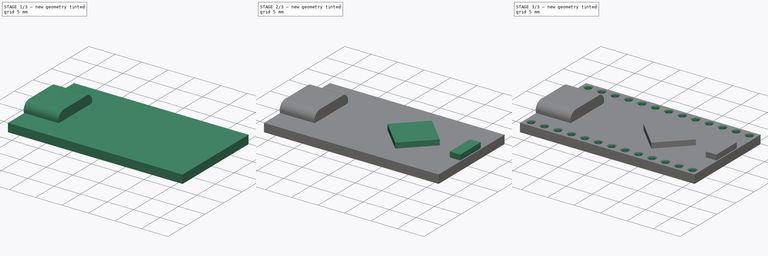
[diagram: build sequence overview — one tinted view per stage of 3, left to right]
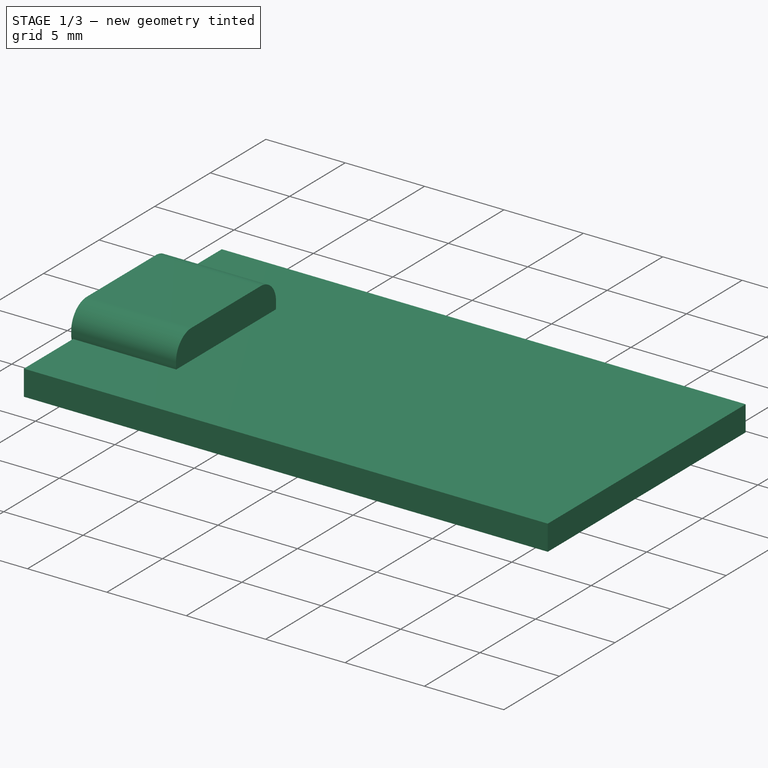
[diagram: stage 1 of 3 — iso view after this stage's code; geometry added in this stage tinted green]
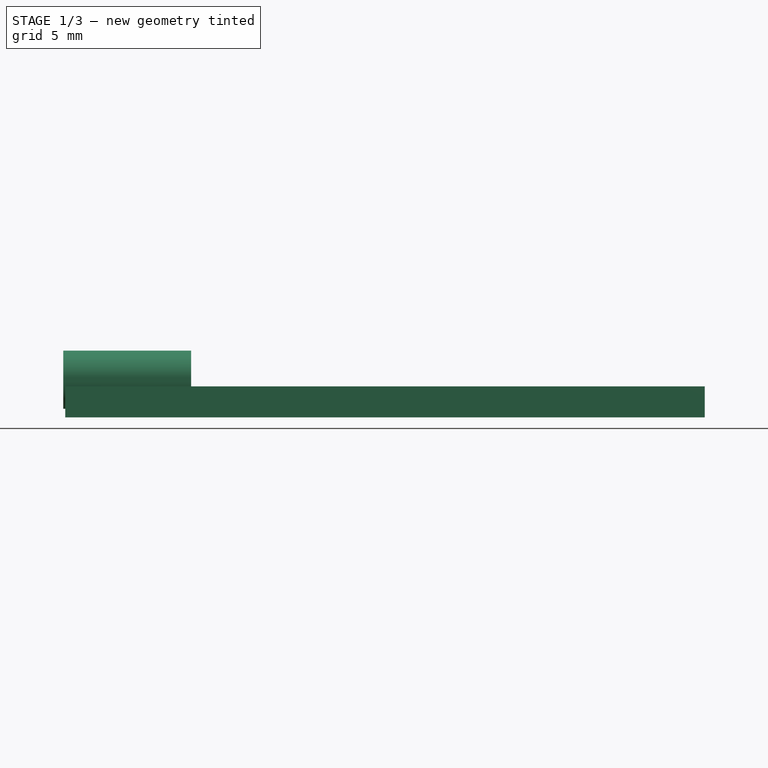
[diagram: stage 1 of 3 — front view after this stage's code; geometry added in this stage tinted green]
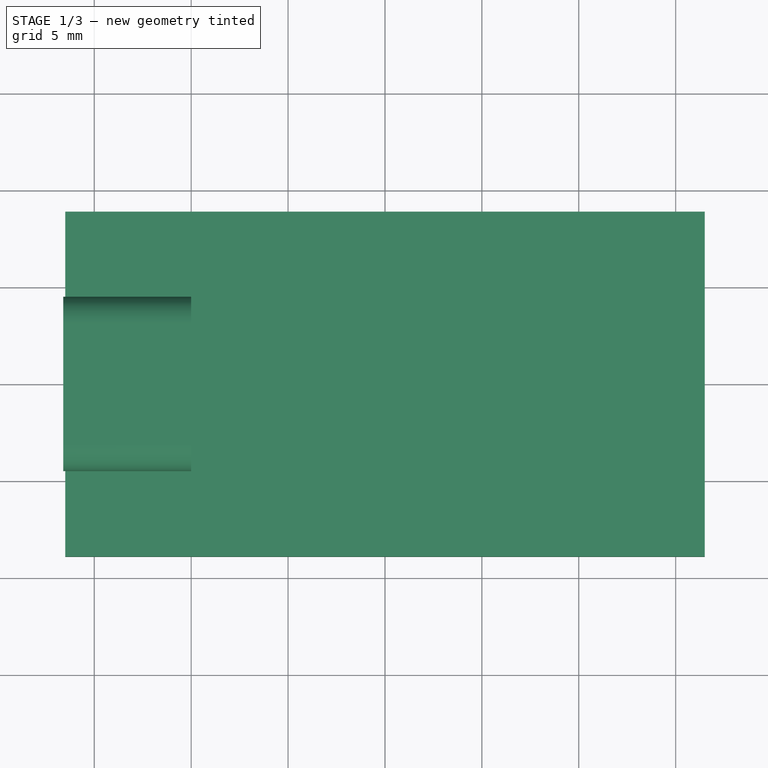
[diagram: stage 1 of 3 — top view after this stage's code; geometry added in this stage tinted green]
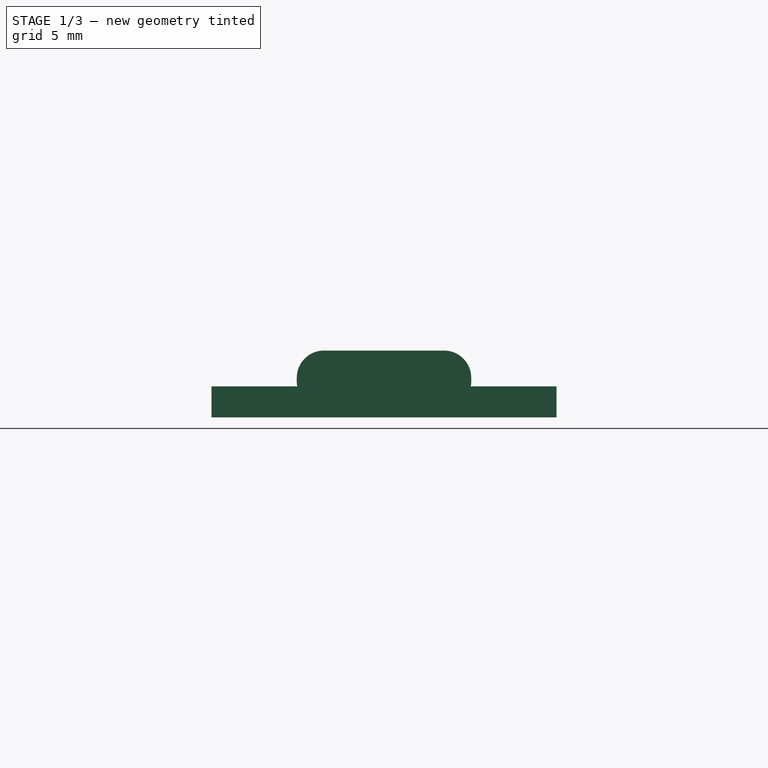
[diagram: stage 1 of 3 — right view after this stage's code; geometry added in this stage tinted green]
FCSTD DOCUMENT  (FreeCAD 1.0R39285 (Git))
Label: nrf52840
Comment: # 2025-11-18 17:26:09: read from None
License: All rights reserved
LicenseURL: https://en.wikipedia.org/wiki/All_rights_reserved
objects: Sketcher::SketchObject×6, PartDesign::Pad×3, PartDesign::Pocket×1, PartDesign::Hole×1, PartDesign::LinearPattern×1, PartDesign::Body×1
note: 30 computed .brp shape members not serialized (recipe doc carries the construction recipe); baked Part::Feature solids carry a one-line shape summary decoded from their .brp

FEATURE [Sketcher::SketchObject] Sketch1
  ArcFitTolerance = 1e-06
  FullyConstrained = true
  MakeInternals = false
  sketch-geometry (6):
    g0: LineSegment StartX=-16.5 StartY=-8.9 StartZ=0 EndX=16.5 EndY=-8.9 EndZ=0
    g1: LineSegment StartX=16.5 StartY=-8.9 StartZ=0 EndX=16.5 EndY=8.9 EndZ=0
    g2: LineSegment StartX=16.5 StartY=8.9 StartZ=0 EndX=-16.5 EndY=8.9 EndZ=0
    g3: LineSegment StartX=-16.5 StartY=8.9 StartZ=0 EndX=-16.5 EndY=-8.9 EndZ=0
    g4: LineSegment [constr] StartX=-16.5 StartY=-8.9 StartZ=0 EndX=16.5 EndY=8.9 EndZ=0
    g5: LineSegment [constr] StartX=16.5 StartY=-8.9 StartZ=0 EndX=-16.5 EndY=8.9 EndZ=0
  constraints (16):
    c: Perpendicular(g0,g1)
    c: Parallel(g0,g2)
    c: Parallel(g1,g3)
    c: Horizontal(g0)
    c: Distance(g2) = 33  'd0'
    c: Distance(g1) = 17.8  'd1'
    c: Coincident(g0,g3)
    c: Coincident(g0,g4)
    c: Coincident(g1,g2)
    c: Coincident(g1,g4)
    c: Coincident(g0,g1)
    c: Coincident(g0,g5)
    c: Coincident(g2,g3)
    c: Coincident(g2,g5)
    c: PointOnObject(g-1,g4)
    c: PointOnObject(g-1,g5)
FEATURE [Sketcher::SketchObject] Sketch3
  ArcFitTolerance = 1e-06
  FullyConstrained = false
  MakeInternals = false
  Placement = pos=(0,0,1.6) rot=(0,0,1;0rad)
  sketch-geometry (12):
    g0: LineSegment StartX=0.600505 StartY=0 StartZ=0 EndX=5.55025 EndY=4.94975 EndZ=0
    g1: LineSegment StartX=5.55025 StartY=4.94975 StartZ=0 EndX=10.5 EndY=0 EndZ=0
    g2: LineSegment StartX=10.5 StartY=0 StartZ=0 EndX=5.55025 EndY=-4.94975 EndZ=0
    g3: LineSegment StartX=5.55025 StartY=-4.94975 StartZ=0 EndX=0.600505 EndY=0 EndZ=0
    g4: LineSegment [constr] StartX=0.600505 StartY=0 StartZ=0 EndX=10.5 EndY=0 EndZ=0
    g5: LineSegment [constr] StartX=5.55025 StartY=4.94975 StartZ=0 EndX=5.55025 EndY=-4.94975 EndZ=0
    g6: LineSegment [constr] StartX=16.5 StartY=-8.9 StartZ=0 EndX=16.5 EndY=8.9 EndZ=0
    g7: LineSegment StartX=14.3 StartY=2.75 StartZ=0 EndX=16.3 EndY=2.75 EndZ=0
    g8: LineSegment StartX=16.3 StartY=2.75 StartZ=0 EndX=16.3 EndY=-2.75 EndZ=0
    g9: LineSegment StartX=16.3 StartY=-2.75 StartZ=0 EndX=14.3 EndY=-2.75 EndZ=0
    g10: LineSegment StartX=14.3 StartY=-2.75 StartZ=0 EndX=14.3 EndY=2.75 EndZ=0
    g11: GeomPoint [constr] X=5.55025 Y=0 Z=0
  constraints (20):
    c: Horizontal(g4)
    c: Equal(g1,g0)
    c: Perpendicular(g7,g8)
    c: Parallel(g7,g9)
    c: Parallel(g8,g10)
    c: Horizontal(g7)
    c: Distance(g1,g6) = 6  'd9'
    c: Distance(g8) = 5.5  'd10'
    c: Distance(g9) = 2  'd11'
    c: Distance(g6,g8) = 0.2  'd12'
    c: Coincident(g0,g3)
    c: Coincident(g0,g4)
    c: Coincident(g0,g1)
    c: Coincident(g0,g5)
    c: Coincident(g1,g2)
    c: Coincident(g1,g4)
    c: Coincident(g2,g3)
    c: Coincident(g2,g5)
    c: PointOnObject(g11,g5)
    c: PointOnObject(g11,g4)
FEATURE [PartDesign::Pad] Pad
  Direction = (0,0,1)
  Length = 1.6
  Length2 = 10
  Profile = -> Sketch1
  ReferenceAxis = -> Sketch1 [N_Axis]
  Refine = true
  Suppressed = false
  Type = 0
FEATURE [Sketcher::SketchObject] Sketch2
  ArcFitTolerance = 1e-06
  ExternalGeometry = -> [Pad]
  FullyConstrained = true
  MakeInternals = false
  Placement = pos=(-16.5,-8.9,0) rot=(0,-1,0;1.5708rad)
  sketch-geometry (41):
    g0: LineSegment [constr] StartX=1.6 StartY=12.1 StartZ=0 EndX=1.6 EndY=5.7 EndZ=0
    g1: LineSegment [constr] StartX=1.9 StartY=5.4 StartZ=0 EndX=2 EndY=5.4 EndZ=0
    g2: LineSegment [constr] StartX=2.3 StartY=5.7 StartZ=0 EndX=2.3 EndY=12.1 EndZ=0
    g3: LineSegment [constr] StartX=2 StartY=12.4 StartZ=0 EndX=1.9 EndY=12.4 EndZ=0
    g4: GeomPoint [constr] X=1.95 Y=8.9 Z=0
    g5: GeomPoint [constr] X=0 Y=8.9 Z=0
    g6: ArcOfCircle [constr] CenterX=1.9 CenterY=12.1 CenterZ=0 NormalX=0 NormalY=0 NormalZ=1 AngleXU=0 Radius=0.3 StartAngle=1.5708 EndAngle=3.14159
    g7: GeomPoint [constr] X=1.6 Y=12.4 Z=0
    g8: ArcOfCircle [constr] CenterX=2 CenterY=12.1 CenterZ=0 NormalX=0 NormalY=0 NormalZ=1 AngleXU=0 Radius=0.3 StartAngle=2.8e-15 EndAngle=1.5708
    g9: GeomPoint [constr] X=2.3 Y=12.4 Z=0
    g10: ArcOfCircle [constr] CenterX=1.9 CenterY=5.7 CenterZ=0 NormalX=0 NormalY=0 NormalZ=1 AngleXU=0 Radius=0.3 StartAngle=3.14159 EndAngle=4.71239
    g11: GeomPoint [constr] X=1.6 Y=5.4 Z=0
    g12: ArcOfCircle [constr] CenterX=2 CenterY=5.7 CenterZ=0 NormalX=0 NormalY=0 NormalZ=1 AngleXU=0 Radius=0.3 StartAngle=4.71239 EndAngle=6.28319
    g13: GeomPoint [constr] X=2.3 Y=5.4 Z=0
    g14: GeomPoint [constr] X=1.6 Y=8.9 Z=0
    g15: LineSegment [constr] StartX=1.85 StartY=4.6 StartZ=0 EndX=2.05 EndY=4.6 EndZ=0
    g16: LineSegment [constr] StartX=3.25 StartY=5.8 StartZ=0 EndX=3.25 EndY=12 EndZ=0
    g17: LineSegment [constr] StartX=2.05 StartY=13.2 StartZ=0 EndX=1.85 EndY=13.2 EndZ=0
    g18: LineSegment [constr] StartX=0.65 StartY=12 StartZ=0 EndX=0.65 EndY=5.8 EndZ=0
    g19: GeomPoint [constr] X=1.95 Y=8.9 Z=0
    g20: LineSegment StartX=1.85 StartY=4.4 StartZ=0 EndX=2.05 EndY=4.4 EndZ=0
    g21: LineSegment StartX=3.45 StartY=5.8 StartZ=0 EndX=3.45 EndY=12 EndZ=0
    g22: LineSegment StartX=2.05 StartY=13.4 StartZ=0 EndX=1.85 EndY=13.4 EndZ=0
    g23: LineSegment StartX=0.45 StartY=12 StartZ=0 EndX=0.45 EndY=5.8 EndZ=0
    g24: GeomPoint [constr] X=1.95 Y=8.9 Z=0
    g25: ArcOfCircle [constr] CenterX=1.85 CenterY=12 CenterZ=0 NormalX=0 NormalY=0 NormalZ=1 AngleXU=0 Radius=1.2 StartAngle=1.5708 EndAngle=3.14159
    g26: GeomPoint [constr] X=0.65 Y=13.2 Z=0
    g27: ArcOfCircle [constr] CenterX=2.05 CenterY=12 CenterZ=0 NormalX=0 NormalY=0 NormalZ=1 AngleXU=0 Radius=1.2 StartAngle=6.4e-15 EndAngle=1.5708
    g28: GeomPoint [constr] X=3.25 Y=13.2 Z=0
    g29: ArcOfCircle [constr] CenterX=2.05 CenterY=5.8 CenterZ=0 NormalX=0 NormalY=0 NormalZ=1 AngleXU=0 Radius=1.2 StartAngle=4.71239 EndAngle=6.28319
    g30: GeomPoint [constr] X=3.25 Y=4.6 Z=0
    g31: ArcOfCircle [constr] CenterX=1.85 CenterY=5.8 CenterZ=0 NormalX=0 NormalY=0 NormalZ=1 AngleXU=0 Radius=1.2 StartAngle=3.14159 EndAngle=4.71239
    g32: GeomPoint [constr] X=0.65 Y=4.6 Z=0
    g33: ArcOfCircle CenterX=1.85 CenterY=5.8 CenterZ=0 NormalX=0 NormalY=0 NormalZ=1 AngleXU=0 Radius=1.4 StartAngle=3.14159 EndAngle=4.71239
    g34: GeomPoint [constr] X=0.45 Y=4.4 Z=0
    g35: ArcOfCircle CenterX=1.85 CenterY=12 CenterZ=0 NormalX=0 NormalY=0 NormalZ=1 AngleXU=0 Radius=1.4 StartAngle=1.5708 EndAngle=3.14159
    g36: GeomPoint [constr] X=0.45 Y=13.4 Z=0
    g37: ArcOfCircle CenterX=2.05 CenterY=12 CenterZ=0 NormalX=0 NormalY=0 NormalZ=1 AngleXU=0 Radius=1.4 StartAngle=0 EndAngle=1.5708
    g38: GeomPoint [constr] X=3.45 Y=13.4 Z=0
    g39: ArcOfCircle CenterX=2.05 CenterY=5.8 CenterZ=0 NormalX=0 NormalY=0 NormalZ=1 AngleXU=0 Radius=1.4 StartAngle=4.71239 EndAngle=6.28319
    g40: GeomPoint [constr] X=3.45 Y=4.4 Z=0
  constraints (87):
    c: Vertical(g0)
    c: Vertical(g2)
    c: Horizontal(g1)
    c: Horizontal(g3)
    c: Symmetric(g13,g7,g4)
    c: Symmetric(g-3,g-3,g5)
    c: Horizontal(g5,g4)
    c: Distance(g13,g0) = 0.7
    c: Distance(g9,g1) = 7
    c: PointOnObject(g7,g0)
    c: PointOnObject(g7,g3)
    c: Tangent(g0,g6) = -1.5708
    c: Tangent(g3,g6) = -1.5708
    c: PointOnObject(g9,g3)
    c: PointOnObject(g9,g2)
    c: Tangent(g3,g8) = -1.5708
    c: Tangent(g2,g8) = -1.5708
    c: PointOnObject(g11,g1)
    c: PointOnObject(g11,g0)
    c: Tangent(g1,g10) = -1.5708
    c: Tangent(g0,g10) = -1.5708
    c: PointOnObject(g13,g1)
    c: PointOnObject(g13,g2)
    c: Tangent(g1,g12) = -1.5708
    c: Tangent(g2,g12) = -1.5708
    c: Equal(g12,g10)
    c: Equal(g12,g8)
    c: Equal(g8,g6)
    c: Radius(g6) = 0.3
    c: Symmetric(g-4,g-4,g14)
    c: PointOnObject(g14,g0)
    c: Horizontal(g15)
    c: Horizontal(g17)
    c: Vertical(g16)
    c: Vertical(g18)
    c: Symmetric(g28,g32,g19)
    c: Coincident(g19,g4)
    c: Horizontal(g20)
    c: Horizontal(g22)
    c: Vertical(g21)
    c: Vertical(g23)
    c: Symmetric(g38,g34,g24)
    c: Coincident(g24,g4)
    c: Distance(g34,g22) = 9
    c: Distance(g28,g15) = 8.6
    c: Distance(g26,g16) = 2.6
    c: Distance(g40,g23) = 3
    c: PointOnObject(g26,g18)
    c: PointOnObject(g26,g17)
    c: Tangent(g18,g25) = -1.5708
    c: Tangent(g17,g25) = -1.5708
    c: PointOnObject(g28,g17)
    c: PointOnObject(g28,g16)
    c: Tangent(g17,g27) = -1.5708
    c: Tangent(g16,g27) = -1.5708
    c: PointOnObject(g30,g16)
    c: PointOnObject(g30,g15)
    c: Tangent(g16,g29) = -1.5708
    c: Tangent(g15,g29) = -1.5708
    c: PointOnObject(g32,g15)
    c: PointOnObject(g32,g18)
    c: Tangent(g15,g31) = -1.5708
    c: Tangent(g18,g31) = -1.5708
    c: PointOnObject(g34,g23)
    c: PointOnObject(g34,g20)
    c: Tangent(g23,g33) = -1.5708
    c: Tangent(g20,g33) = -1.5708
    c: PointOnObject(g36,g23)
    c: PointOnObject(g36,g22)
    c: Tangent(g23,g35) = -1.5708
    c: Tangent(g22,g35) = -1.5708
    c: PointOnObject(g38,g22)
    c: PointOnObject(g38,g21)
    c: Tangent(g22,g37) = -1.5708
    c: Tangent(g21,g37) = -1.5708
    c: PointOnObject(g40,g20)
    c: PointOnObject(g40,g21)
    c: Tangent(g20,g39) = -1.5708
    c: Tangent(g21,g39) = -1.5708
    c: Equal(g33,g39)
    c: Equal(g39,g37)
    c: Equal(g37,g35)
    c: Equal(g25,g27)
    c: Equal(g27,g29)
    c: Equal(g29,g31)
    c: Radius(g37) = 1.4
    c: Radius(g27) = 1.2
FEATURE [PartDesign::Pad] Pad001
  BaseFeature = -> Pad
  Direction = (-1,0,2e-16)
  Length = 0.1
  Length2 = 6.5
  Profile = -> Sketch2
  ReferenceAxis = -> Sketch2 [N_Axis]
  Refine = true
  Suppressed = false
  Type = 4
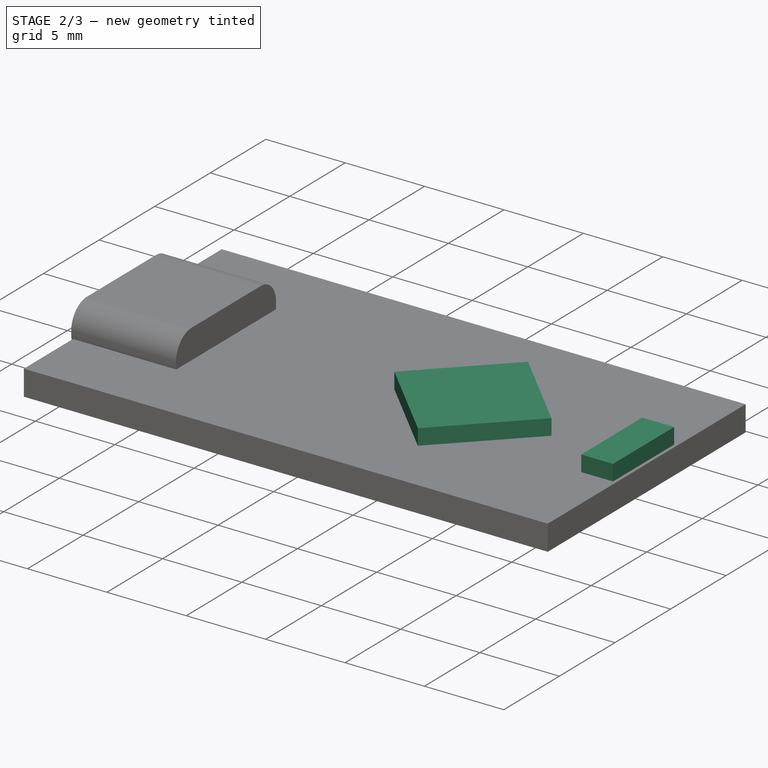
[diagram: stage 2 of 3 — iso view after this stage's code; geometry added in this stage tinted green]
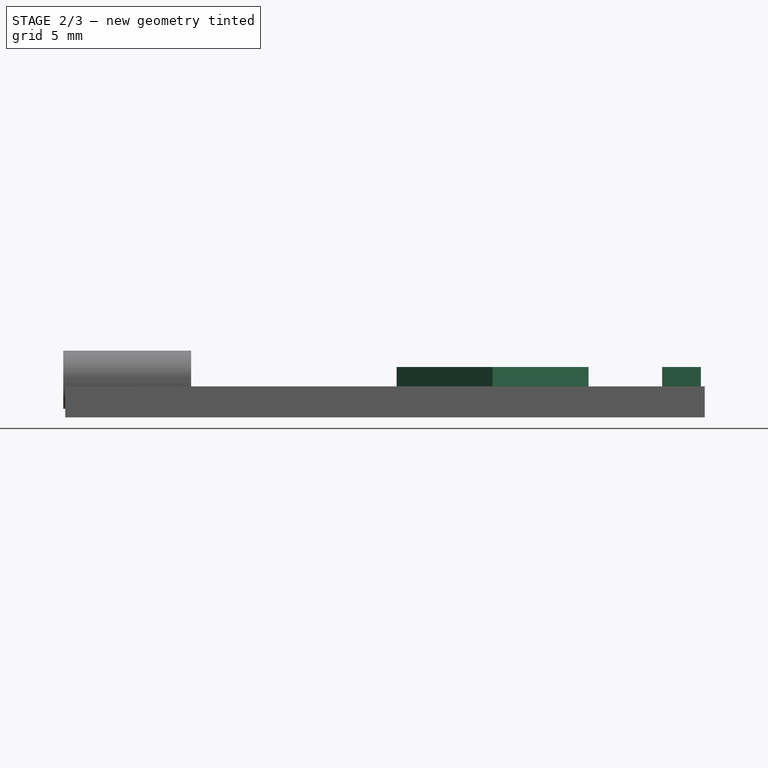
[diagram: stage 2 of 3 — front view after this stage's code; geometry added in this stage tinted green]
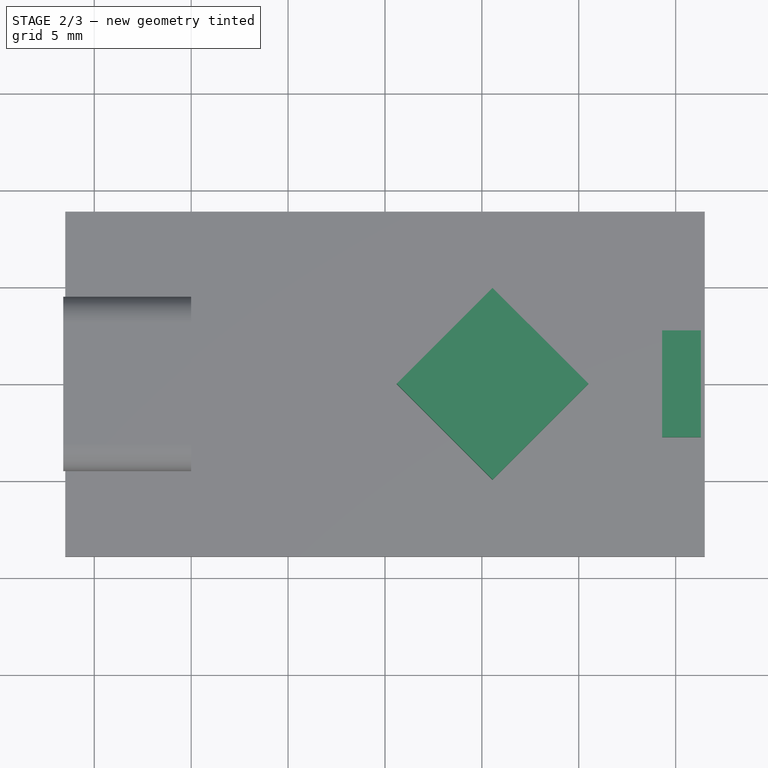
[diagram: stage 2 of 3 — top view after this stage's code; geometry added in this stage tinted green]
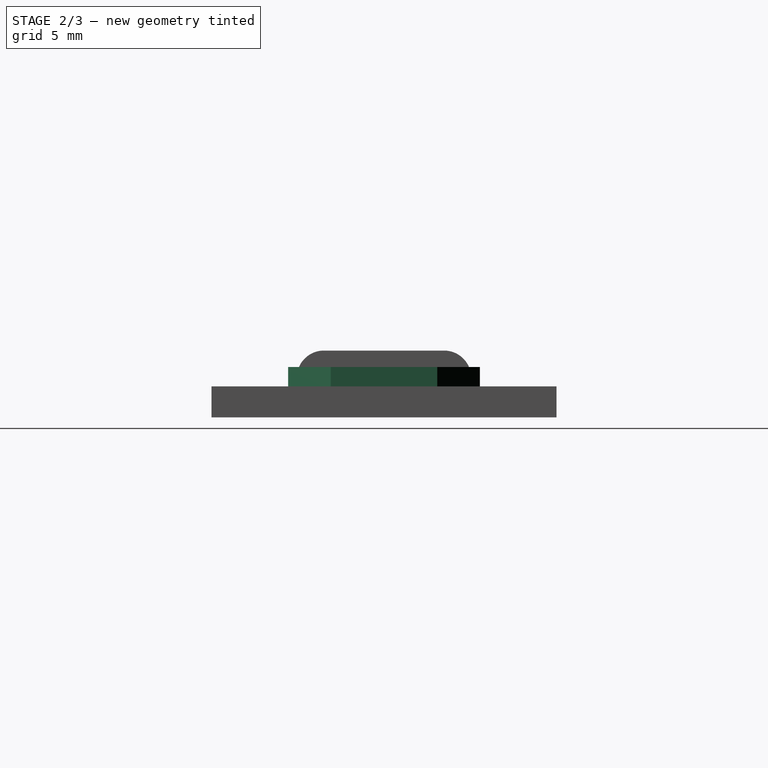
[diagram: stage 2 of 3 — right view after this stage's code; geometry added in this stage tinted green]
FEATURE [Sketcher::SketchObject] Sketch006
  ArcFitTolerance = 1e-06
  ExternalGeometry = -> [Pad]
  FullyConstrained = true
  MakeInternals = false
  Placement = pos=(-16.5,-8.9,0) rot=(0,-1,0;1.5708rad)
  sketch-geometry (29):
    g0: LineSegment StartX=1.6 StartY=12.1 StartZ=0 EndX=1.6 EndY=5.7 EndZ=0
    g1: LineSegment StartX=1.9 StartY=5.4 StartZ=0 EndX=2 EndY=5.4 EndZ=0
    g2: LineSegment StartX=2.3 StartY=5.7 StartZ=0 EndX=2.3 EndY=12.1 EndZ=0
    g3: LineSegment StartX=2 StartY=12.4 StartZ=0 EndX=1.9 EndY=12.4 EndZ=0
    g4: GeomPoint [constr] X=1.95 Y=8.9 Z=0
    g5: GeomPoint [constr] X=0 Y=8.9 Z=0
    g6: ArcOfCircle CenterX=1.9 CenterY=12.1 CenterZ=0 NormalX=0 NormalY=0 NormalZ=1 AngleXU=0 Radius=0.3 StartAngle=1.5708 EndAngle=3.14159
    g7: GeomPoint [constr] X=1.6 Y=12.4 Z=0
    g8: ArcOfCircle CenterX=2 CenterY=12.1 CenterZ=0 NormalX=0 NormalY=0 NormalZ=1 AngleXU=0 Radius=0.3 StartAngle=2.8e-15 EndAngle=1.5708
    g9: GeomPoint [constr] X=2.3 Y=12.4 Z=0
    g10: ArcOfCircle CenterX=1.9 CenterY=5.7 CenterZ=0 NormalX=0 NormalY=0 NormalZ=1 AngleXU=0 Radius=0.3 StartAngle=3.14159 EndAngle=4.71239
    g11: GeomPoint [constr] X=1.6 Y=5.4 Z=0
    g12: ArcOfCircle CenterX=2 CenterY=5.7 CenterZ=0 NormalX=0 NormalY=0 NormalZ=1 AngleXU=0 Radius=0.3 StartAngle=4.71239 EndAngle=6.28319
    g13: GeomPoint [constr] X=2.3 Y=5.4 Z=0
    g14: GeomPoint [constr] X=1.6 Y=8.9 Z=0
    g15: LineSegment StartX=1.85 StartY=4.6 StartZ=0 EndX=2.05 EndY=4.6 EndZ=0
    g16: LineSegment StartX=3.25 StartY=5.8 StartZ=0 EndX=3.25 EndY=12 EndZ=0
    g17: LineSegment StartX=2.05 StartY=13.2 StartZ=0 EndX=1.85 EndY=13.2 EndZ=0
    g18: LineSegment StartX=0.65 StartY=12 StartZ=0 EndX=0.65 EndY=5.8 EndZ=0
    g19: GeomPoint [constr] X=1.95 Y=8.9 Z=0
    g20: GeomPoint [constr] X=1.95 Y=8.9 Z=0
    g21: ArcOfCircle CenterX=1.85 CenterY=12 CenterZ=0 NormalX=0 NormalY=0 NormalZ=1 AngleXU=0 Radius=1.2 StartAngle=1.5708 EndAngle=3.14159
    g22: GeomPoint [constr] X=0.65 Y=13.2 Z=0
    g23: ArcOfCircle CenterX=2.05 CenterY=12 CenterZ=0 NormalX=0 NormalY=0 NormalZ=1 AngleXU=0 Radius=1.2 StartAngle=5e-16 EndAngle=1.5708
    g24: GeomPoint [constr] X=3.25 Y=13.2 Z=0
    g25: ArcOfCircle CenterX=2.05 CenterY=5.8 CenterZ=0 NormalX=0 NormalY=0 NormalZ=1 AngleXU=0 Radius=1.2 StartAngle=4.71239 EndAngle=6.28319
    g26: GeomPoint [constr] X=3.25 Y=4.6 Z=0
    g27: ArcOfCircle CenterX=1.85 CenterY=5.8 CenterZ=0 NormalX=0 NormalY=0 NormalZ=1 AngleXU=0 Radius=1.2 StartAngle=3.14159 EndAngle=4.71239
    g28: GeomPoint [constr] X=0.65 Y=4.6 Z=0
  constraints (60):
    c: Vertical(g0)
    c: Vertical(g2)
    c: Horizontal(g1)
    c: Horizontal(g3)
    c: Symmetric(g13,g7,g4)
    c: Symmetric(g-3,g-3,g5)
    c: Horizontal(g5,g4)
    c: Distance(g13,g0) = 0.7
    c: Distance(g9,g1) = 7
    c: PointOnObject(g7,g0)
    c: PointOnObject(g7,g3)
    c: Tangent(g0,g6) = -1.5708
    c: Tangent(g3,g6) = -1.5708
    c: PointOnObject(g9,g3)
    c: PointOnObject(g9,g2)
    c: Tangent(g3,g8) = -1.5708
    c: Tangent(g2,g8) = -1.5708
    c: PointOnObject(g11,g1)
    c: PointOnObject(g11,g0)
    c: Tangent(g1,g10) = -1.5708
    c: Tangent(g0,g10) = -1.5708
    c: PointOnObject(g13,g1)
    c: PointOnObject(g13,g2)
    c: Tangent(g1,g12) = -1.5708
    c: Tangent(g2,g12) = -1.5708
    c: Equal(g12,g10)
    c: Equal(g12,g8)
    c: Equal(g8,g6)
    c: Radius(g6) = 0.3
    c: Symmetric(g-4,g-4,g14)
    c: PointOnObject(g14,g0)
    c: Horizontal(g15)
    c: Horizontal(g17)
    c: Vertical(g16)
    c: Vertical(g18)
    c: Symmetric(g24,g28,g19)
    c: Coincident(g19,g4)
    c: Coincident(g20,g4)
    c: Distance(g24,g15) = 8.6
    c: Distance(g22,g16) = 2.6
    c: PointOnObject(g22,g18)
    c: PointOnObject(g22,g17)
    c: Tangent(g18,g21) = -1.5708
    c: Tangent(g17,g21) = -1.5708
    c: PointOnObject(g24,g17)
    c: PointOnObject(g24,g16)
    c: Tangent(g17,g23) = -1.5708
    c: Tangent(g16,g23) = -1.5708
    c: PointOnObject(g26,g16)
    c: PointOnObject(g26,g15)
    c: Tangent(g16,g25) = -1.5708
    c: Tangent(g15,g25) = -1.5708
    c: PointOnObject(g28,g15)
    c: PointOnObject(g28,g18)
    c: Tangent(g15,g27) = -1.5708
    c: Tangent(g18,g27) = -1.5708
    c: Equal(g21,g23)
    c: Equal(g23,g25)
    c: Equal(g25,g27)
    c: Radius(g23) = 1.2
FEATURE [PartDesign::Pocket] Pocket
  BaseFeature = -> Pad001
  Direction = (1,0,0)
  Length = 6
  Length2 = 5
  Midplane = true
  Profile = -> Sketch006
  ReferenceAxis = -> Sketch006 [N_Axis]
  Refine = true
  Suppressed = false
  Type = 0
FEATURE [PartDesign::Pad] Pad002
  BaseFeature = -> Pocket
  Direction = (0,0,1)
  Length = 1
  Length2 = 10
  Profile = -> Sketch3
  ReferenceAxis = -> Sketch3 [N_Axis]
  Refine = true
  Suppressed = false
  Type = 0
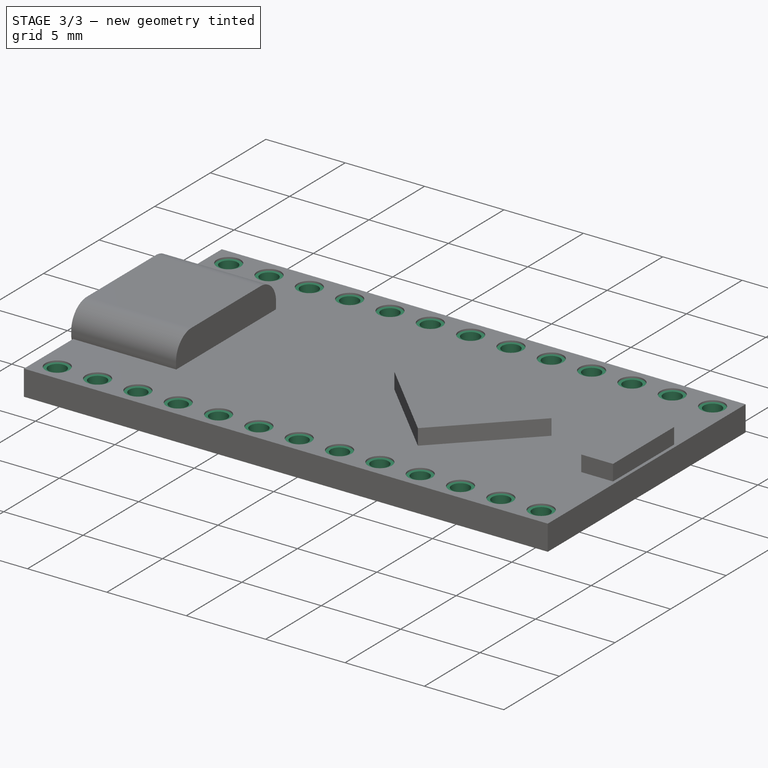
[diagram: stage 3 of 3 — iso view after this stage's code; geometry added in this stage tinted green]
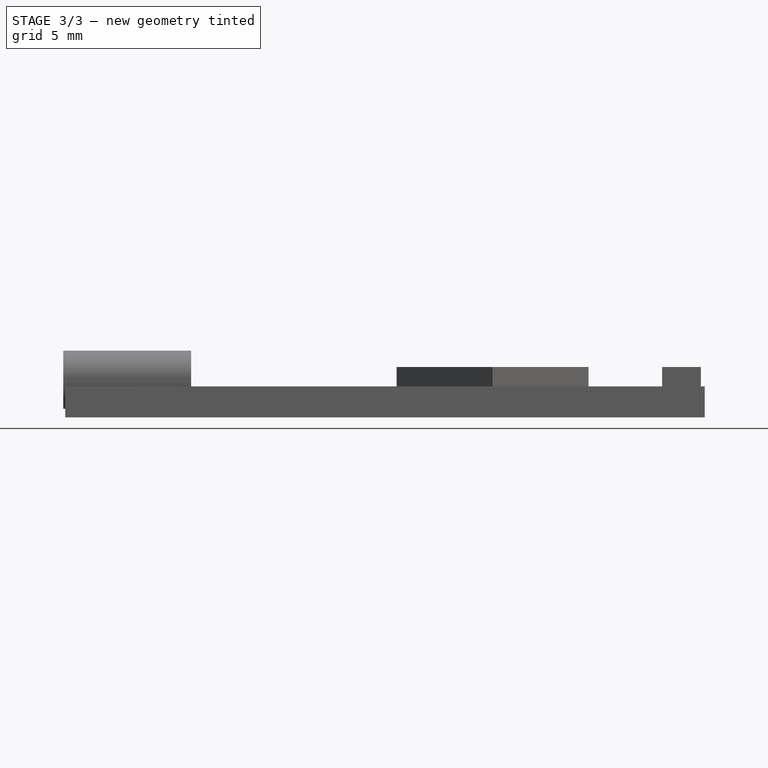
[diagram: stage 3 of 3 — front view after this stage's code; geometry added in this stage tinted green]
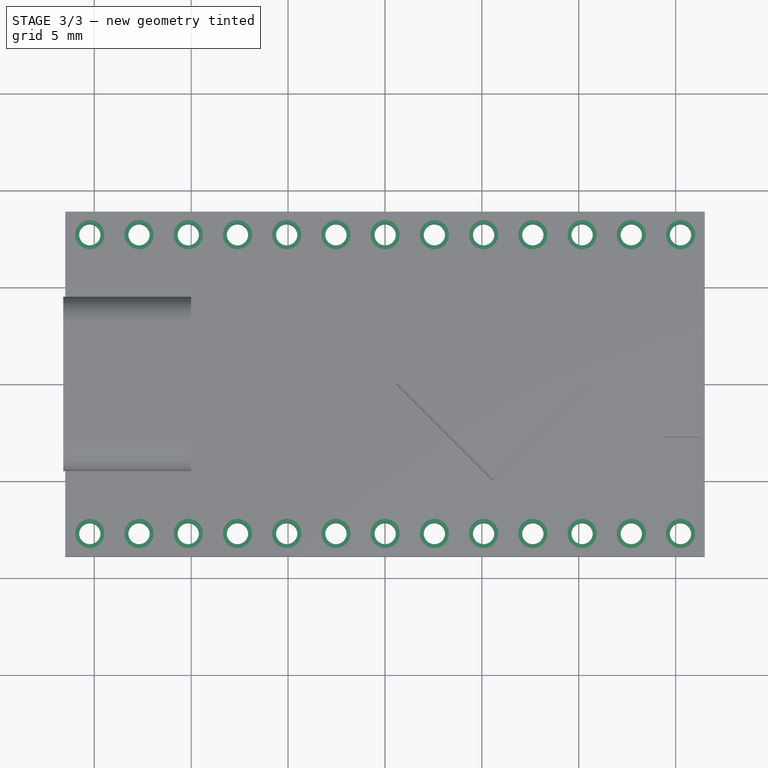
[diagram: stage 3 of 3 — top view after this stage's code; geometry added in this stage tinted green]
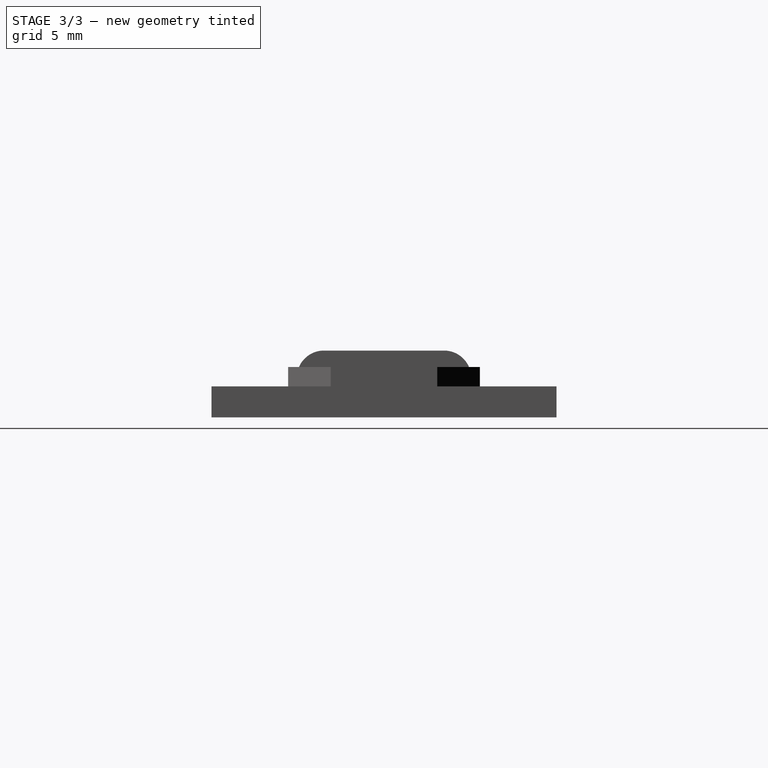
[diagram: stage 3 of 3 — right view after this stage's code; geometry added in this stage tinted green]
FEATURE [Sketcher::SketchObject] Sketch4
  ArcFitTolerance = 1e-06
  ExternalGeometry = -> [Pad002]
  FullyConstrained = false
  MakeInternals = false
  Placement = pos=(0,0,1.6) rot=(0,0,1;0rad)
  sketch-geometry (3):
    g0: GeomPoint [constr] X=-15.23 Y=-7.71 Z=0
    g1: Circle CenterX=-15.23 CenterY=-7.71 CenterZ=0 NormalX=0 NormalY=0 NormalZ=1 AngleXU=0 Radius=0.742351
    g2: Circle CenterX=-14.6198 CenterY=6.80265 CenterZ=0 NormalX=0 NormalY=0 NormalZ=1 AngleXU=0 Radius=0.742351
  constraints (4):
    c: Distance(g0,g-3) = 1.27
    c: DistanceY(g0,g-1) = 7.71
    c: Coincident(g1,g0)
    c: Equal(g1,g2)
FEATURE [PartDesign::Hole] Hole
  BaseFeature = -> Pad002
  CustomThreadClearance = 0
  Depth = 25
  DepthType = 0
  Diameter = 1.1
  DrillForDepth = false
  DrillPoint = 1
  DrillPointAngle = 118
  HoleCutCountersinkAngle = 90
  HoleCutCustomValues = false
  HoleCutDepth = 0.1
  HoleCutDiameter = 1.5
  HoleCutType = 1
  ModelThread = false
  Profile = -> Sketch4
  Refine = true
  Suppressed = false
  Tapered = false
  TaperedAngle = 90
  ThreadClass = 0
  ThreadDepth = 25
  ThreadDepthType = 0
  ThreadDirection = 0
  ThreadFit = 0
  ThreadSize = 0
  ThreadType = 0
  Threaded = false
  UseCustomThreadClearance = false
FEATURE [PartDesign::LinearPattern] LinearPattern
  BaseFeature = -> Hole
  Direction = -> X_Axis
  Length = 30.48
  Mode = 1
  Occurrences = 13
  Offset = 2.54
  Originals = -> [Hole]
  Refine = true
  Suppressed = false
  TransformMode = 0
FEATURE [Sketcher::SketchObject] Sketch5
  ArcFitTolerance = 1e-06
  FullyConstrained = false
  MakeInternals = false
  Placement = pos=(0,0,0) rot=(0,1,0;3.14159rad)
  sketch-geometry (1):
    g0: Circle [constr] CenterX=15.23 CenterY=-7.71 CenterZ=0 NormalX=0 NormalY=0 NormalZ=1 AngleXU=0 Radius=0.75
FEATURE [PartDesign::Body] Body_0
  AllowCompound = false
  Group = -> [Sketch1,Sketch3,Sketch4,Sketch5,Pad,Sketch2,Pad001,Sketch006,Pocket,Pad002,Hole,LinearPattern]
  Origin = -> Origin
  Tip = -> LinearPattern
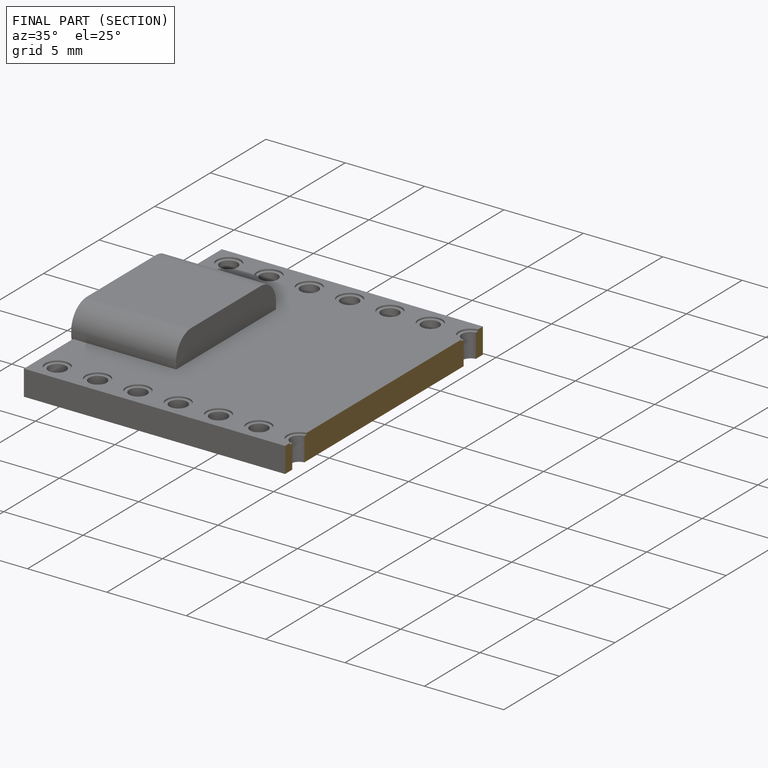
[diagram: finished part — half-section view (interior)]
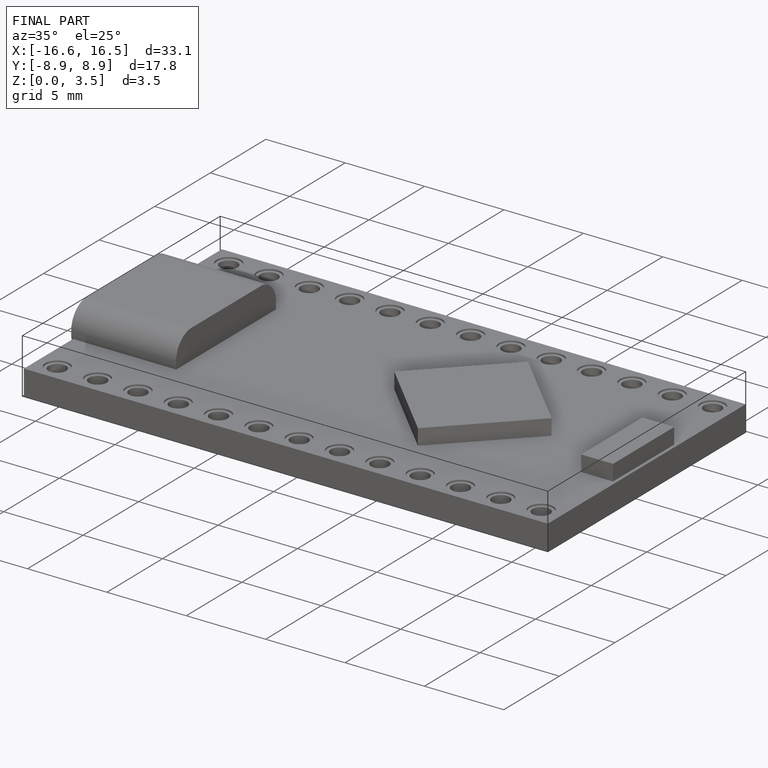
[diagram: finished part — iso view with bounding-box wireframe]
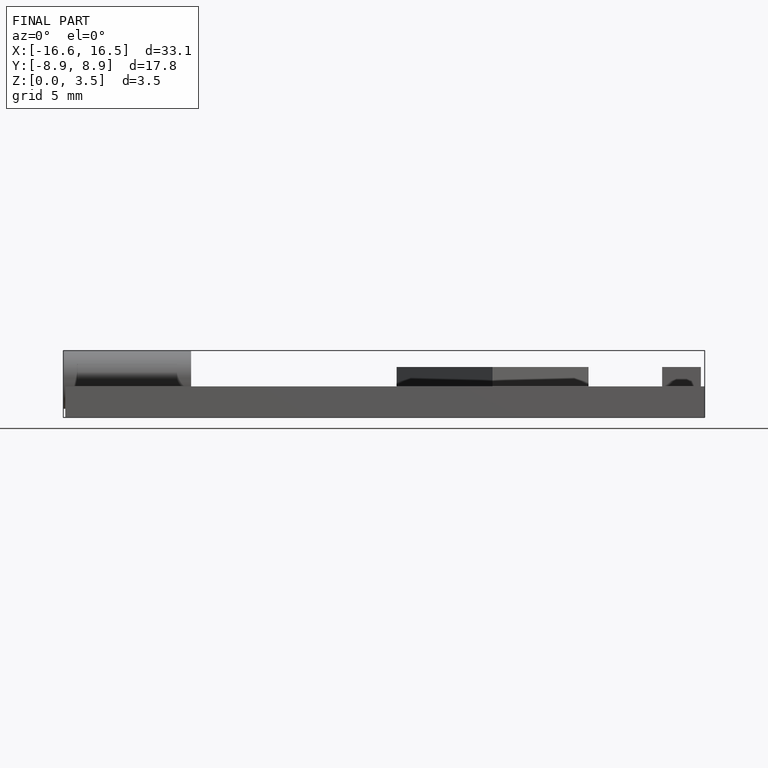
[diagram: finished part — front view with bounding-box wireframe]
